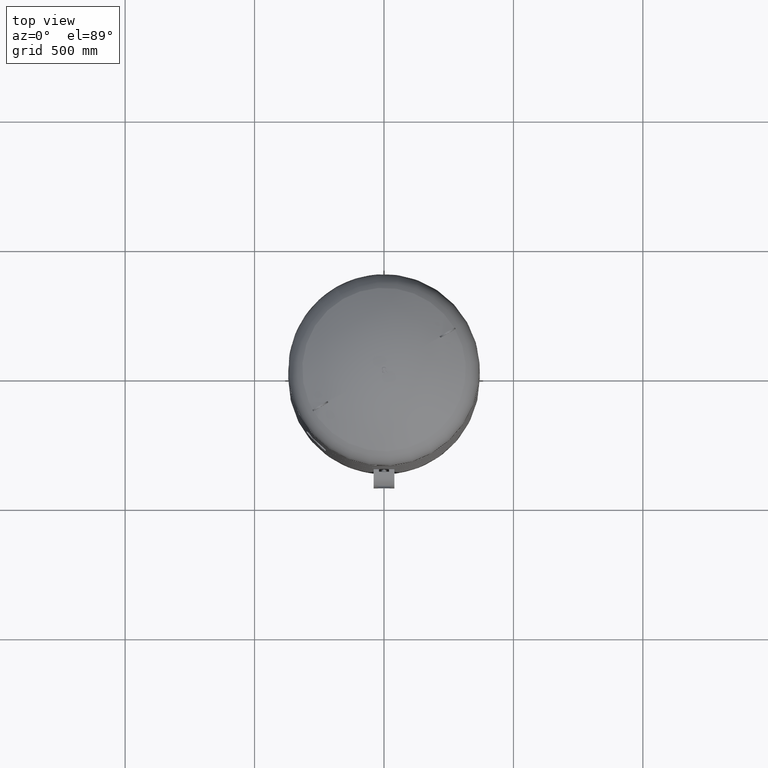
[diagram: clean part render]
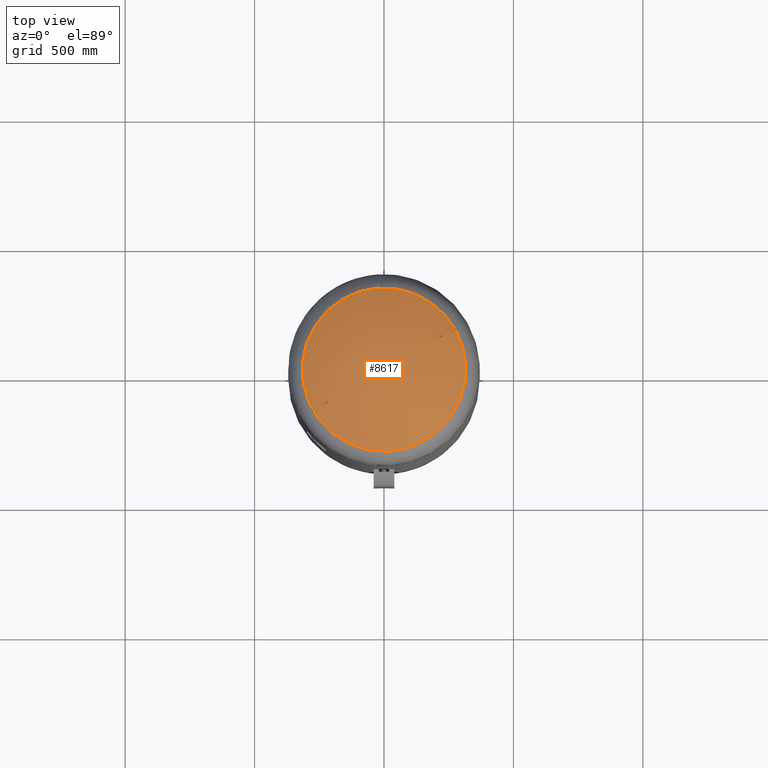
[diagram: same view with one face highlighted and labeled with its STEP entity id]
A machine part, top view. The second image highlights one B-rep face of the part: STEP entity #8617.
In plain terms, the highlighted spherical surface has radius 594 mm.
Its self-contained STEP definition (entity closure, byte-faithful):
#7986=CARTESIAN_POINT('',(157.965517241379270,-273.604301705966460,2482.014494274920300));
#7987=VERTEX_POINT('',#7986);
#8003=CARTESIAN_POINT('',(-157.965517241379250,273.604301705966410,2482.014494274920300));
#8004=VERTEX_POINT('',#8003);
#8012=CARTESIAN_POINT('',(273.604301705966460,157.965517241379250,2482.014494274920300));
#8013=VERTEX_POINT('',#8012);
#8014=CARTESIAN_POINT('',(-1.292814E-015,-2.004580E-014,2482.014494274920300));
#8015=DIRECTION('',(-1.060575E-016,-6.123234E-017,-1.0));
#8016=DIRECTION('',(0.866025403784439,0.500000000000000,-1.224647E-016));
#8017=AXIS2_PLACEMENT_3D('',#8014,#8015,#8016);
#8018=CIRCLE('',#8017,315.931034482758610);
#8019=EDGE_CURVE('',#8004,#8013,#8018,.T.);
#8021=CARTESIAN_POINT('',(-1.292814E-015,-2.004580E-014,2482.014494274920300));
#8022=DIRECTION('',(-1.060575E-016,-6.123234E-017,-1.0));
#8023=DIRECTION('',(0.866025403784439,0.500000000000000,-1.224647E-016));
#8024=AXIS2_PLACEMENT_3D('',#8021,#8022,#8023);
#8025=CIRCLE('',#8024,315.931034482758610);
#8026=EDGE_CURVE('',#8013,#7987,#8025,.T.);
#8162=CARTESIAN_POINT('',(215.032738994050080,127.613311357928240,2517.805868495306200));
#8163=VERTEX_POINT('',#8162);
#8164=CARTESIAN_POINT('',(264.376557238610250,156.101978104269390,2487.500942393024600));
#8165=VERTEX_POINT('',#8164);
#8166=CARTESIAN_POINT('',(-1.499999999995883,2.598076211345996,1979.0));
#8167=DIRECTION('',(-0.500000000000006,0.866025403784435,0.0));
#8168=DIRECTION('',(0.0,0.0,1.0));
#8169=AXIS2_PLACEMENT_3D('',#8166,#8167,#8168);
#8170=CIRCLE('',#8169,593.992424194113820);
#8171=EDGE_CURVE('',#8163,#8165,#8170,.T.);
#8214=CARTESIAN_POINT('',(218.032738994050020,122.417158935221560,2517.805868495306200));
#8215=VERTEX_POINT('',#8214);
#8216=CARTESIAN_POINT('',(81.041876268855148,46.789549079456478,1953.075117590819000));
#8217=DIRECTION('',(-0.834590199910595,-0.481850876581413,0.266981143436978));
#8218=DIRECTION('',(-0.231212452547840,-0.133490571718489,-0.963701753162815));
#8219=AXIS2_PLACEMENT_3D('',#8216,#8217,#8218);
#8220=CIRCLE('',#8219,586.009260046148940);
#8221=EDGE_CURVE('',#8215,#8163,#8220,.T.);
#8285=CARTESIAN_POINT('',(267.376557238610190,150.905825681562790,2487.500942393024600));
#8286=VERTEX_POINT('',#8285);
#8287=CARTESIAN_POINT('',(133.621058863222740,77.146154304085570,1936.255305554289400));
#8288=DIRECTION('',(0.834590199910595,0.481850876581413,-0.266981143436978));
#8289=DIRECTION('',(0.231212452547840,0.133490571718489,0.963701753162815));
#8290=AXIS2_PLACEMENT_3D('',#8287,#8288,#8289);
#8291=CIRCLE('',#8290,572.016411129177530);
#8292=EDGE_CURVE('',#8165,#8286,#8291,.T.);
#8356=CARTESIAN_POINT('',(1.500000000004162,-2.598076211360627,1979.0));
#8357=DIRECTION('',(0.500000000000006,-0.866025403784435,0.0));
#8358=DIRECTION('',(0.0,0.0,-1.0));
#8359=AXIS2_PLACEMENT_3D('',#8356,#8357,#8358);
#8360=CIRCLE('',#8359,593.992424194113710);
#8361=EDGE_CURVE('',#8286,#8215,#8360,.T.);
#8378=CARTESIAN_POINT('',(-215.032738994045760,-127.613311357935440,2517.805868495306200));
#8379=VERTEX_POINT('',#8378);
#8380=CARTESIAN_POINT('',(-264.376557238605870,-156.101978104276610,2487.500942393024600));
#8381=VERTEX_POINT('',#8380);
#8382=CARTESIAN_POINT('',(1.499999999999974,-2.598076211353372,1979.0));
#8383=DIRECTION('',(0.500000000000006,-0.866025403784435,0.0));
#8384=DIRECTION('',(0.0,0.0,-1.0));
#8385=AXIS2_PLACEMENT_3D('',#8382,#8383,#8384);
#8386=CIRCLE('',#8385,593.992424194113820);
#8387=EDGE_CURVE('',#8379,#8381,#8386,.T.);
#8430=CARTESIAN_POINT('',(-218.032738994045790,-122.417158935228780,2517.805868495306200));
#8431=VERTEX_POINT('',#8430);
#8432=CARTESIAN_POINT('',(-81.041876268855106,-46.789549079456712,1953.075117590819000));
#8433=DIRECTION('',(0.834590199910595,0.481850876581413,0.266981143436977));
#8434=DIRECTION('',(-0.231212452547839,-0.133490571718489,0.963701753162815));
#8435=AXIS2_PLACEMENT_3D('',#8432,#8433,#8434);
#8436=CIRCLE('',#8435,586.009260046148940);
#8437=EDGE_CURVE('',#8431,#8379,#8436,.T.);
#8501=CARTESIAN_POINT('',(-267.376557238605810,-150.905825681569980,2487.500942393024600));
#8502=VERTEX_POINT('',#8501);
#8503=CARTESIAN_POINT('',(-133.621058863222710,-77.146154304085812,1936.255305554289400));
#8504=DIRECTION('',(-0.834590199910595,-0.481850876581413,-0.266981143436977));
#8505=DIRECTION('',(0.231212452547839,0.133490571718489,-0.963701753162815));
#8506=AXIS2_PLACEMENT_3D('',#8503,#8504,#8505);
#8507=CIRCLE('',#8506,572.016411129177530);
#8508=EDGE_CURVE('',#8381,#8502,#8507,.T.);
#8572=CARTESIAN_POINT('',(-1.500000000000086,2.598076211353275,1979.0));
#8573=DIRECTION('',(-0.500000000000006,0.866025403784435,0.0));
#8574=DIRECTION('',(0.0,0.0,1.0));
#8575=AXIS2_PLACEMENT_3D('',#8572,#8573,#8574);
#8576=CIRCLE('',#8575,593.992424194113820);
#8577=EDGE_CURVE('',#8502,#8431,#8576,.T.);
#8589=CARTESIAN_POINT('',(-8.440154E-015,-1.308693E-013,1979.0));
#8590=DIRECTION('',(0.500000000000000,-0.866025403784439,1.836970E-016));
#8591=DIRECTION('',(-0.866025403784439,-0.500000000000000,1.224647E-016));
#8592=AXIS2_PLACEMENT_3D('',#8589,#8590,#8591);
#8593=SPHERICAL_SURFACE('',#8592,594.0);
#8594=ORIENTED_EDGE('',*,*,#8221,.T.);
#8595=ORIENTED_EDGE('',*,*,#8171,.T.);
#8596=ORIENTED_EDGE('',*,*,#8292,.T.);
#8597=ORIENTED_EDGE('',*,*,#8361,.T.);
#8598=EDGE_LOOP('',(#8594,#8595,#8596,#8597));
#8599=FACE_OUTER_BOUND('',#8598,.T.);
#8600=ORIENTED_EDGE('',*,*,#8437,.T.);
#8601=ORIENTED_EDGE('',*,*,#8387,.T.);
#8602=ORIENTED_EDGE('',*,*,#8508,.T.);
#8603=ORIENTED_EDGE('',*,*,#8577,.T.);
#8604=EDGE_LOOP('',(#8600,#8601,#8602,#8603));
#8605=FACE_BOUND('',#8604,.T.);
#8606=ORIENTED_EDGE('',*,*,#8026,.F.);
#8607=ORIENTED_EDGE('',*,*,#8019,.F.);
#8608=CARTESIAN_POINT('',(-1.292814E-015,-2.004580E-014,2482.014494274920300));
#8609=DIRECTION('',(-1.060575E-016,-6.123234E-017,-1.0));
#8610=DIRECTION('',(0.866025403784439,0.500000000000000,-1.224647E-016));
#8611=AXIS2_PLACEMENT_3D('',#8608,#8609,#8610);
#8612=CIRCLE('',#8611,315.931034482758610);
#8613=EDGE_CURVE('',#7987,#8004,#8612,.T.);
#8614=ORIENTED_EDGE('',*,*,#8613,.F.);
#8615=EDGE_LOOP('',(#8606,#8607,#8614));
#8616=FACE_BOUND('',#8615,.T.);
#8617=ADVANCED_FACE('',(#8599,#8605,#8616),#8593,.T.);